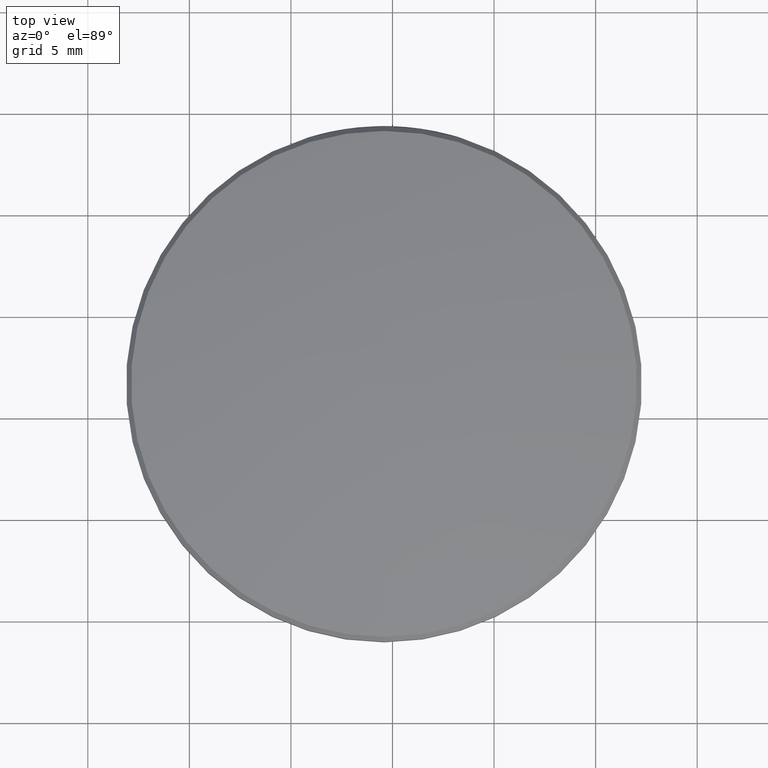
[diagram: clean part render]
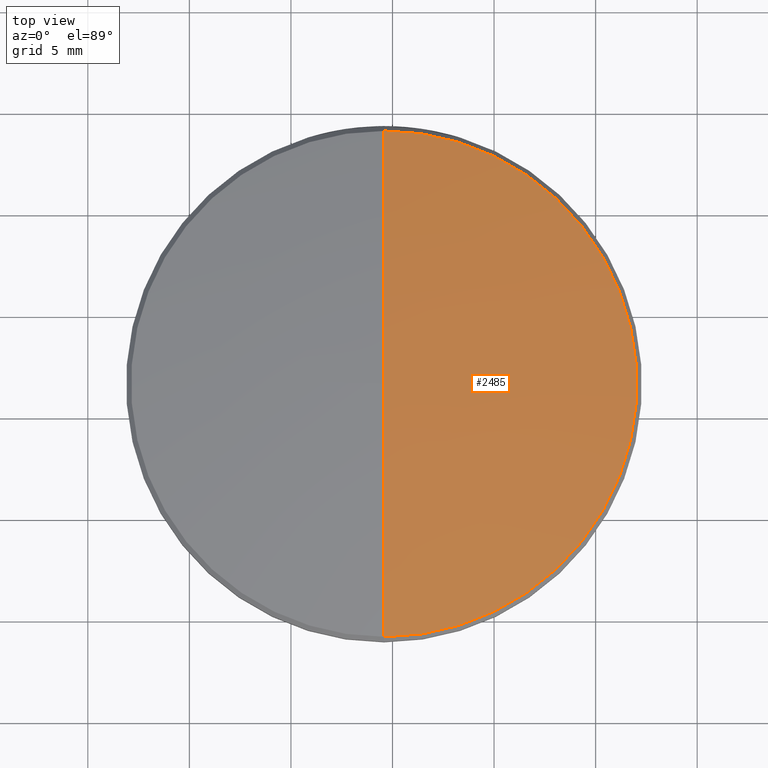
[diagram: same view with one face highlighted and labeled with its STEP entity id]
A machine part, top view. The second image highlights one B-rep face of the part: STEP entity #2485.
In plain terms, the highlighted toroidal blend (fillet) surface has major radius 0.0463 mm and minor (blend) radius 69.01 mm.
Its self-contained STEP definition (entity closure, byte-faithful):
#106 = DIRECTION ( 'NONE',  ( 0.0000000000000000000, 1.000000000000000000, 0.0000000000000000000 ) ) ;
#190 = EDGE_CURVE ( 'NONE', #516, #196, #244, .T. ) ;
#196 = VERTEX_POINT ( 'NONE', #910 ) ;
#244 = CIRCLE ( 'NONE', #2479, 2.716929133858268397 ) ;
#364 = EDGE_CURVE ( 'NONE', #196, #2038, #1475, .T. ) ;
#461 = ORIENTED_EDGE ( 'NONE', *, *, #364, .T. ) ;
#468 = DIRECTION ( 'NONE',  ( 0.0000000000000000000, 1.000000000000000000, 1.224646799147353207E-16 ) ) ;
#505 = DIRECTION ( 'NONE',  ( 0.0000000000000000000, 0.0000000000000000000, 1.000000000000000000 ) ) ;
#516 = VERTEX_POINT ( 'NONE', #2307 ) ;
#652 = ORIENTED_EDGE ( 'NONE', *, *, #2574, .F. ) ;
#866 = FACE_OUTER_BOUND ( 'NONE', #2614, .T. ) ;
#910 = CARTESIAN_POINT ( 'NONE',  ( -0.01648550022812547353, 0.3634264889887492411, 0.8165851593906510164 ) ) ;
#1116 = DIRECTION ( 'NONE',  ( 1.000000000000000000, 1.224646799147353207E-16, 1.499759782661857608E-32 ) ) ;
#1155 = DIRECTION ( 'NONE',  ( -1.000000000000000000, 0.0000000000000000000, 0.0000000000000000000 ) ) ;
#1475 = CIRCLE ( 'NONE', #2578, 0.4903421040444047585 ) ;
#1524 = AXIS2_PLACEMENT_3D ( 'NONE', #2167, #2407, #468 ) ;
#1837 = ORIENTED_EDGE ( 'NONE', *, *, #190, .T. ) ;
#1842 = CARTESIAN_POINT ( 'NONE',  ( -0.01648550022812553251, 0.8537685930331552209, 0.8165851593906512385 ) ) ;
#1851 = DIRECTION ( 'NONE',  ( 0.0000000000000000000, -1.224646799147368245E-16, 1.000000000000000000 ) ) ;
#1921 = TOROIDAL_SURFACE ( 'NONE', #1524, 0.001822084931447549589, 2.716929133858268397 ) ;
#1984 = CARTESIAN_POINT ( 'NONE',  ( -0.01648550022812553251, 1.344110697077561367, 0.8165851593906510164 ) ) ;
#2003 = CARTESIAN_POINT ( 'NONE',  ( -0.01648550022812553251, 0.8555906779646029747, -1.856063734372559892 ) ) ;
#2038 = VERTEX_POINT ( 'NONE', #1984 ) ;
#2167 = CARTESIAN_POINT ( 'NONE',  ( -0.01648550022812553251, 0.8537685930331554429, -1.856063734372559892 ) ) ;
#2307 = CARTESIAN_POINT ( 'NONE',  ( -0.01648550022812553251, 0.8537685930331552209, 0.8608647885029209190 ) ) ;
#2376 = AXIS2_PLACEMENT_3D ( 'NONE', #2003, #1155, #505 ) ;
#2407 = DIRECTION ( 'NONE',  ( -0.0000000000000000000, 1.224646799147353207E-16, -1.000000000000000000 ) ) ;
#2479 = AXIS2_PLACEMENT_3D ( 'NONE', #2640, #1116, #2630 ) ;
#2485 = ADVANCED_FACE ( 'NONE', ( #866 ), #1921, .T. ) ;
#2574 = EDGE_CURVE ( 'NONE', #516, #2038, #2579, .T. ) ;
#2578 = AXIS2_PLACEMENT_3D ( 'NONE', #1842, #1851, #106 ) ;
#2579 = CIRCLE ( 'NONE', #2376, 2.716929133858268397 ) ;
#2614 = EDGE_LOOP ( 'NONE', ( #652, #1837, #461 ) ) ;
#2630 = DIRECTION ( 'NONE',  ( -1.225442246831898799E-16, 1.000000000000000000, 0.0000000000000000000 ) ) ;
#2640 = CARTESIAN_POINT ( 'NONE',  ( -0.01648550022812553251, 0.8519465081017079111, -1.856063734372559892 ) ) ;